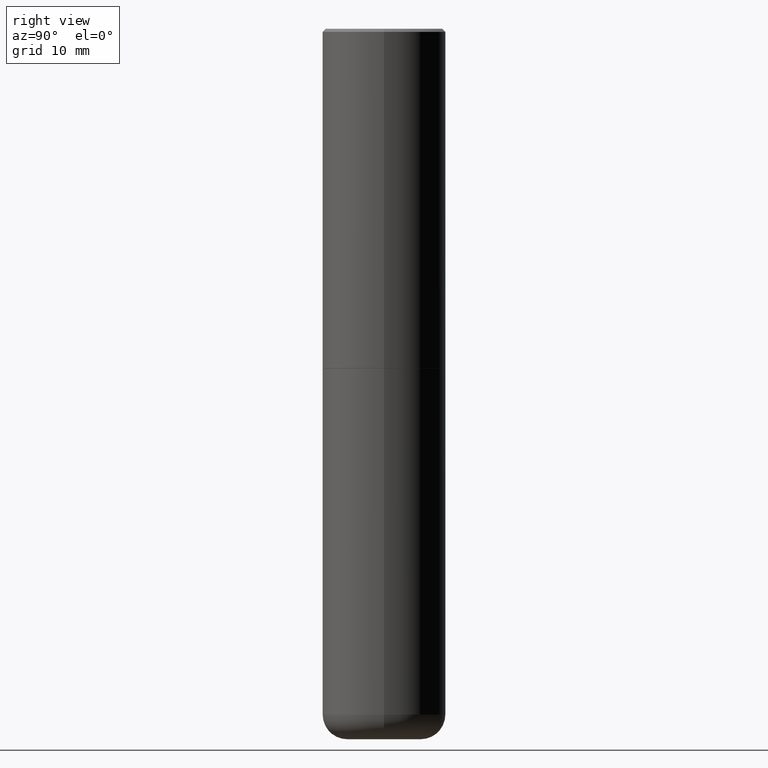
[diagram: clean part render]
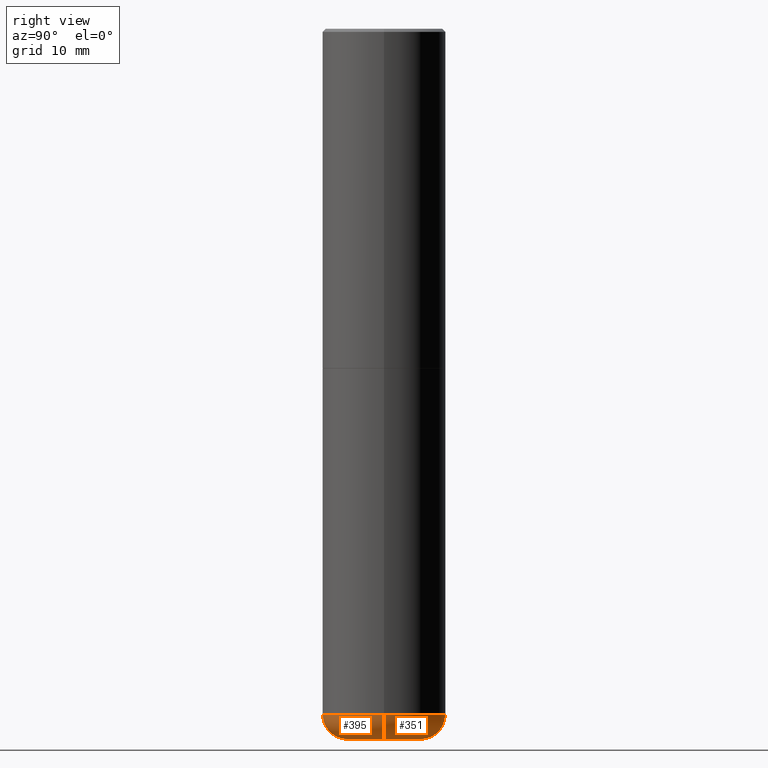
[diagram: same view with one multi-face feature highlighted, each face labeled with its STEP entity id]
A machine part, right view. The highlighted faces form ONE feature: a constant-radius fillet chain: 2 tangent blend faces with common blend radius 4.0005 mm. The faces share edges in the B-rep.
Their STEP definitions:
[1] entity #395 (Torus):
#3 = CARTESIAN_POINT ( 'NONE',  ( -0.3937000000000001054, -1.246071584819091497E-14, -4.370099999999998985 ) ) ;
#11 = DIRECTION ( 'NONE',  ( -6.982962677686266711E-15, -1.000000000000000000, 3.491481338843145583E-15 ) ) ;
#26 = EDGE_LOOP ( 'NONE', ( #312, #154, #61, #60 ) ) ;
#42 = CARTESIAN_POINT ( 'NONE',  ( 0.2362000000000000766, -1.745740669421572042E-14, -4.527599999999999625 ) ) ;
#43 = DIRECTION ( 'NONE',  ( -1.000000000000000000, 7.105427357601006592E-15, 0.000000000000000000 ) ) ;
#47 = VERTEX_POINT ( 'NONE', #3 ) ;
#60 = ORIENTED_EDGE ( 'NONE', *, *, #385, .F. ) ;
#61 = ORIENTED_EDGE ( 'NONE', *, *, #77, .T. ) ;
#63 = EDGE_CURVE ( 'NONE', #213, #47, #388, .T. ) ;
#77 = EDGE_CURVE ( 'NONE', #288, #216, #113, .T. ) ;
#79 = CARTESIAN_POINT ( 'NONE',  ( -0.2362000000000000210, -1.357982065701307100E-14, -4.370099999999998985 ) ) ;
#89 = TOROIDAL_SURFACE ( 'NONE', #322, 0.2362000000000000210, 0.1575000000000000844 ) ;
#93 = AXIS2_PLACEMENT_3D ( 'NONE', #200, #221, #197 ) ;
#101 = CARTESIAN_POINT ( 'NONE',  ( 0.3937000000000001054, -1.800731500508351219E-14, -4.370099999999998985 ) ) ;
#110 = DIRECTION ( 'NONE',  ( 7.105427357601001859E-15, 1.000000000000000000, -3.491481338843145583E-15 ) ) ;
#113 = CIRCLE ( 'NONE', #357, 0.1575000000000000566 ) ;
#121 = DIRECTION ( 'NONE',  ( 1.000000000000000000, -6.982962677686261977E-15, 4.883557194083110659E-29 ) ) ;
#122 = AXIS2_PLACEMENT_3D ( 'NONE', #373, #178, #212 ) ;
#154 = ORIENTED_EDGE ( 'NONE', *, *, #193, .T. ) ;
#165 = AXIS2_PLACEMENT_3D ( 'NONE', #79, #110, #43 ) ;
#178 = DIRECTION ( 'NONE',  ( -2.445468806185136597E-29, 3.491481338843145583E-15, 1.000000000000000000 ) ) ;
#190 = CIRCLE ( 'NONE', #122, 0.2362000000000000766 ) ;
#193 = EDGE_CURVE ( 'NONE', #213, #288, #190, .T. ) ;
#197 = DIRECTION ( 'NONE',  ( 1.000000000000000000, -6.982962677686261977E-15, 0.000000000000000000 ) ) ;
#200 = CARTESIAN_POINT ( 'NONE',  ( 1.068694322990966450E-28, -1.525812259887842897E-14, -4.370099999999998985 ) ) ;
#212 = DIRECTION ( 'NONE',  ( 1.000000000000000000, -6.982962677686262766E-15, 0.000000000000000000 ) ) ;
#213 = VERTEX_POINT ( 'NONE', #336 ) ;
#216 = VERTEX_POINT ( 'NONE', #101 ) ;
#221 = DIRECTION ( 'NONE',  ( -2.445468806185136597E-29, 3.491481338843145583E-15, 1.000000000000000000 ) ) ;
#254 = DIRECTION ( 'NONE',  ( -2.445468806185136597E-29, 3.491481338843145583E-15, 1.000000000000000000 ) ) ;
#268 = DIRECTION ( 'NONE',  ( 1.000000000000000000, -6.982962677686259611E-15, 0.000000000000000000 ) ) ;
#288 = VERTEX_POINT ( 'NONE', #42 ) ;
#291 = FACE_OUTER_BOUND ( 'NONE', #26, .T. ) ;
#303 = CARTESIAN_POINT ( 'NONE',  ( 0.2362000000000000210, -1.690749838334792550E-14, -4.370099999999998985 ) ) ;
#312 = ORIENTED_EDGE ( 'NONE', *, *, #63, .F. ) ;
#319 = CIRCLE ( 'NONE', #93, 0.3937000000000001054 ) ;
#322 = AXIS2_PLACEMENT_3D ( 'NONE', #399, #254, #121 ) ;
#336 = CARTESIAN_POINT ( 'NONE',  ( -0.2362000000000000766, -1.329522240803589203E-14, -4.527599999999999625 ) ) ;
#357 = AXIS2_PLACEMENT_3D ( 'NONE', #303, #11, #268 ) ;
#373 = CARTESIAN_POINT ( 'NONE',  ( 1.107210456688382298E-28, -1.580803090974622389E-14, -4.527599999999999625 ) ) ;
#385 = EDGE_CURVE ( 'NONE', #47, #216, #319, .T. ) ;
#388 = CIRCLE ( 'NONE', #165, 0.1575000000000000566 ) ;
#395 = ADVANCED_FACE ( 'NONE', ( #291 ), #89, .T. ) ;
#399 = CARTESIAN_POINT ( 'NONE',  ( 1.068694322990966450E-28, -1.525812259887842897E-14, -4.370099999999998985 ) ) ;
[2] entity #351 (Torus):
#1 = EDGE_CURVE ( 'NONE', #216, #47, #155, .T. ) ;
#3 = CARTESIAN_POINT ( 'NONE',  ( -0.3937000000000001054, -1.246071584819091497E-14, -4.370099999999998985 ) ) ;
#11 = DIRECTION ( 'NONE',  ( -6.982962677686266711E-15, -1.000000000000000000, 3.491481338843145583E-15 ) ) ;
#17 = DIRECTION ( 'NONE',  ( 1.000000000000000000, -6.982962677686261977E-15, 0.000000000000000000 ) ) ;
#42 = CARTESIAN_POINT ( 'NONE',  ( 0.2362000000000000766, -1.745740669421572042E-14, -4.527599999999999625 ) ) ;
#43 = DIRECTION ( 'NONE',  ( -1.000000000000000000, 7.105427357601006592E-15, 0.000000000000000000 ) ) ;
#47 = VERTEX_POINT ( 'NONE', #3 ) ;
#52 = ORIENTED_EDGE ( 'NONE', *, *, #77, .F. ) ;
#63 = EDGE_CURVE ( 'NONE', #213, #47, #388, .T. ) ;
#77 = EDGE_CURVE ( 'NONE', #288, #216, #113, .T. ) ;
#79 = CARTESIAN_POINT ( 'NONE',  ( -0.2362000000000000210, -1.357982065701307100E-14, -4.370099999999998985 ) ) ;
#90 = ORIENTED_EDGE ( 'NONE', *, *, #1, .F. ) ;
#101 = CARTESIAN_POINT ( 'NONE',  ( 0.3937000000000001054, -1.800731500508351219E-14, -4.370099999999998985 ) ) ;
#110 = DIRECTION ( 'NONE',  ( 7.105427357601001859E-15, 1.000000000000000000, -3.491481338843145583E-15 ) ) ;
#113 = CIRCLE ( 'NONE', #357, 0.1575000000000000566 ) ;
#143 = EDGE_CURVE ( 'NONE', #288, #213, #381, .T. ) ;
#145 = CARTESIAN_POINT ( 'NONE',  ( 1.068694322990966450E-28, -1.525812259887842897E-14, -4.370099999999998985 ) ) ;
#155 = CIRCLE ( 'NONE', #274, 0.3937000000000001054 ) ;
#165 = AXIS2_PLACEMENT_3D ( 'NONE', #79, #110, #43 ) ;
#170 = AXIS2_PLACEMENT_3D ( 'NONE', #248, #187, #317 ) ;
#173 = DIRECTION ( 'NONE',  ( -2.445468806185136597E-29, 3.491481338843145583E-15, 1.000000000000000000 ) ) ;
#187 = DIRECTION ( 'NONE',  ( -2.445468806185136597E-29, 3.491481338843145583E-15, 1.000000000000000000 ) ) ;
#213 = VERTEX_POINT ( 'NONE', #336 ) ;
#216 = VERTEX_POINT ( 'NONE', #101 ) ;
#241 = EDGE_LOOP ( 'NONE', ( #379, #406, #90, #52 ) ) ;
#248 = CARTESIAN_POINT ( 'NONE',  ( 1.068694322990966450E-28, -1.525812259887842897E-14, -4.370099999999998985 ) ) ;
#259 = CARTESIAN_POINT ( 'NONE',  ( 1.107210456688382298E-28, -1.580803090974622389E-14, -4.527599999999999625 ) ) ;
#260 = DIRECTION ( 'NONE',  ( -2.445468806185136597E-29, 3.491481338843145583E-15, 1.000000000000000000 ) ) ;
#268 = DIRECTION ( 'NONE',  ( 1.000000000000000000, -6.982962677686259611E-15, 0.000000000000000000 ) ) ;
#272 = TOROIDAL_SURFACE ( 'NONE', #170, 0.2362000000000000210, 0.1575000000000000844 ) ;
#274 = AXIS2_PLACEMENT_3D ( 'NONE', #145, #173, #17 ) ;
#288 = VERTEX_POINT ( 'NONE', #42 ) ;
#303 = CARTESIAN_POINT ( 'NONE',  ( 0.2362000000000000210, -1.690749838334792550E-14, -4.370099999999998985 ) ) ;
#317 = DIRECTION ( 'NONE',  ( 1.000000000000000000, -6.982962677686261977E-15, 4.883557194083110659E-29 ) ) ;
#336 = CARTESIAN_POINT ( 'NONE',  ( -0.2362000000000000766, -1.329522240803589203E-14, -4.527599999999999625 ) ) ;
#349 = FACE_OUTER_BOUND ( 'NONE', #241, .T. ) ;
#351 = ADVANCED_FACE ( 'NONE', ( #349 ), #272, .T. ) ;
#357 = AXIS2_PLACEMENT_3D ( 'NONE', #303, #11, #268 ) ;
#365 = DIRECTION ( 'NONE',  ( 1.000000000000000000, -6.982962677686262766E-15, 0.000000000000000000 ) ) ;
#379 = ORIENTED_EDGE ( 'NONE', *, *, #143, .T. ) ;
#381 = CIRCLE ( 'NONE', #393, 0.2362000000000000766 ) ;
#388 = CIRCLE ( 'NONE', #165, 0.1575000000000000566 ) ;
#393 = AXIS2_PLACEMENT_3D ( 'NONE', #259, #260, #365 ) ;
#406 = ORIENTED_EDGE ( 'NONE', *, *, #63, .T. ) ;